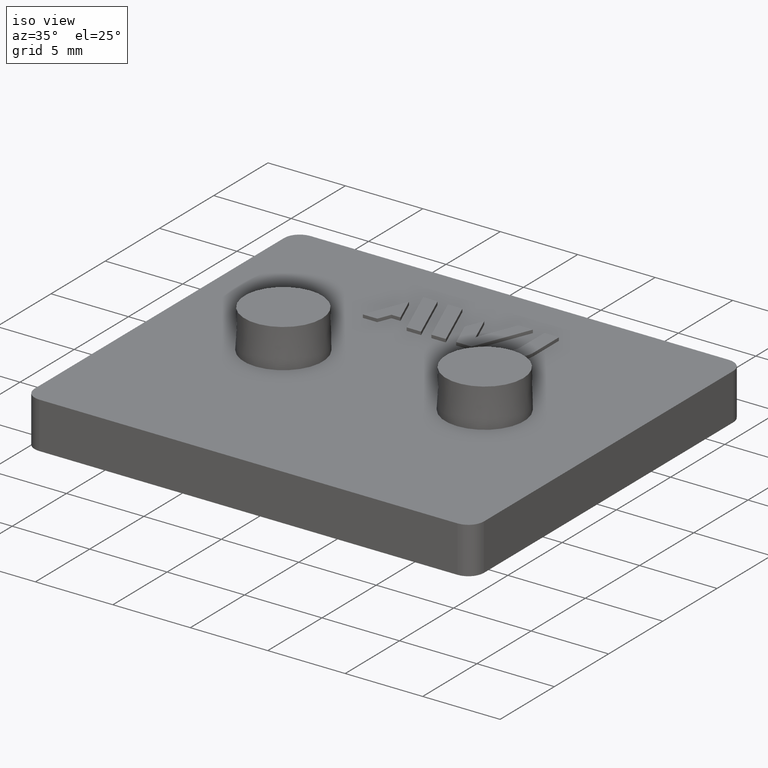
[diagram: clean part render]
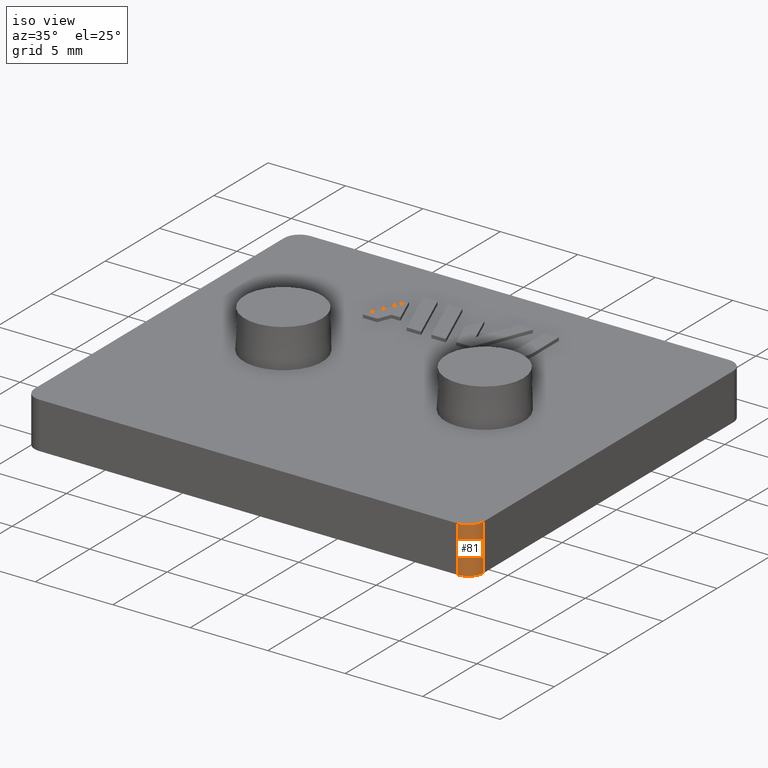
[diagram: same view with one face highlighted and labeled with its STEP entity id]
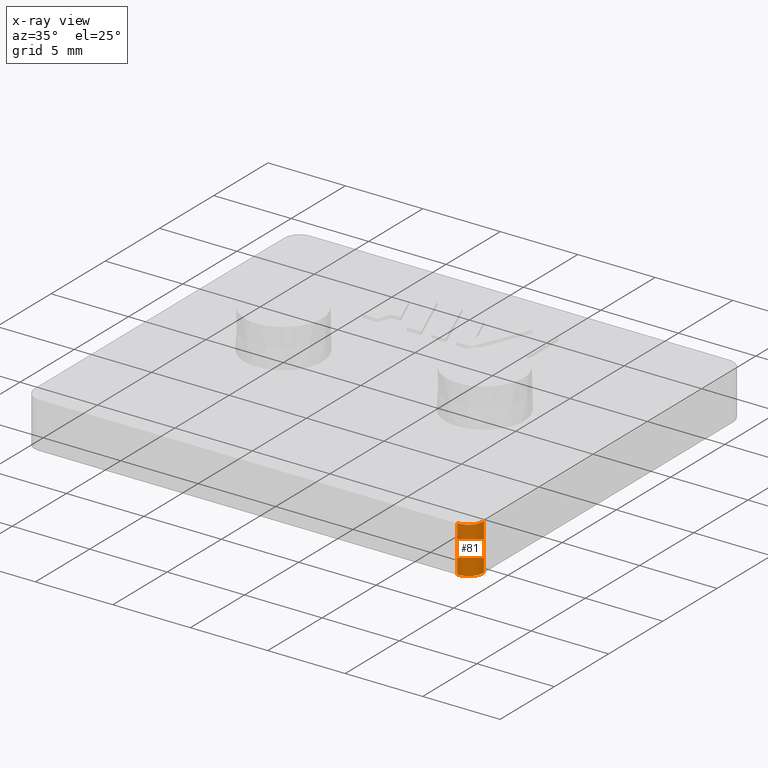
[diagram: x-ray of the same camera — body ghosted, the highlighted face saturated]
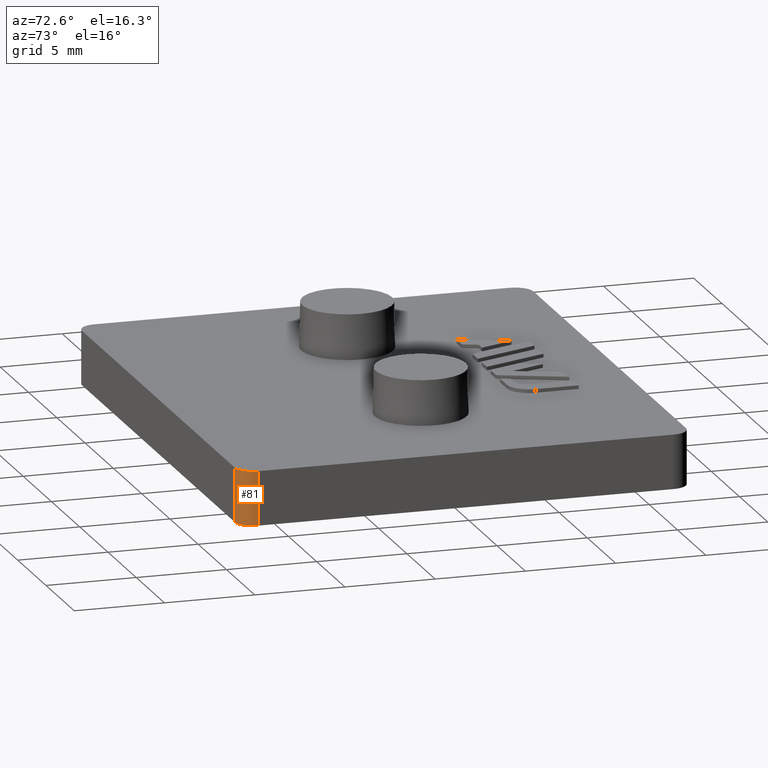
[diagram: same view with one face highlighted and labeled with its STEP entity id]
A machine part, iso view. The second image highlights one B-rep face of the part: STEP entity #81.
The next image is the same camera in x-ray: the body ghosted, the highlighted face saturated — about 0% of this face is hidden behind the body in this view.
A second angle (auxiliary view) of the same face is appended — the face is thin or edge-on in the first view.
In plain terms, the highlighted cylindrical surface (edge-blend (fillet) strip) has radius 1 mm, axis along (-0, -0, -1).
Its self-contained STEP definition (entity closure, byte-faithful):
#81 = ADVANCED_FACE( '', ( #156 ), #157, .T. );
#156 = FACE_OUTER_BOUND( '', #289, .T. );
#157 = CYLINDRICAL_SURFACE( '', #290, 0.999999999999987 );
#289 = EDGE_LOOP( '', ( #479, #480, #481, #482 ) );
#290 = AXIS2_PLACEMENT_3D( '', #483, #484, #485 );
#479 = ORIENTED_EDGE( '', *, *, #932, .F. );
#480 = ORIENTED_EDGE( '', *, *, #931, .T. );
#481 = ORIENTED_EDGE( '', *, *, #893, .T. );
#482 = ORIENTED_EDGE( '', *, *, #933, .F. );
#483 = CARTESIAN_POINT( '', ( 13.5000000000000, -11.5000000000000, -51.3812999910289 ) );
#484 = DIRECTION( '', ( -1.49519739311857E-016, -2.33178017899756E-016, -1.00000000000000 ) );
#485 = DIRECTION( '', ( 1.00000000000000, -4.62592926927148E-016, -1.49519739311857E-016 ) );
#893 = EDGE_CURVE( '', #1052, #1053, #1054, .T. );
#931 = EDGE_CURVE( '', #1122, #1052, #1124, .T. );
#932 = EDGE_CURVE( '', #1122, #1125, #1126, .T. );
#933 = EDGE_CURVE( '', #1125, #1053, #1127, .T. );
#1052 = VERTEX_POINT( '', #1311 );
#1053 = VERTEX_POINT( '', #1312 );
#1054 = CIRCLE( '', #1313, 0.999999999999987 );
#1122 = VERTEX_POINT( '', #1409 );
#1124 = LINE( '', #1412, #1413 );
#1125 = VERTEX_POINT( '', #1414 );
#1126 = CIRCLE( '', #1415, 0.999999999999987 );
#1127 = LINE( '', #1416, #1417 );
#1311 = CARTESIAN_POINT( '', ( 14.5000000000000, -11.5000000000000, 2.99999999999998 ) );
#1312 = CARTESIAN_POINT( '', ( 13.5000000000000, -12.5000000000000, 2.99999999999999 ) );
#1313 = AXIS2_PLACEMENT_3D( '', #1669, #1670, #1671 );
#1409 = CARTESIAN_POINT( '', ( 14.5000000000000, -11.5000000000000, -2.70514269621810E-014 ) );
#1412 = CARTESIAN_POINT( '', ( 14.5000000000000, -11.5000000000000, -51.3812999910289 ) );
#1413 = VECTOR( '', #1725, 1000.00000000000 );
#1414 = CARTESIAN_POINT( '', ( 13.5000000000000, -12.5000000000000, -4.08679844523044E-014 ) );
#1415 = AXIS2_PLACEMENT_3D( '', #1726, #1727, #1728 );
#1416 = CARTESIAN_POINT( '', ( 13.5000000000000, -12.5000000000000, -51.3812999910289 ) );
#1417 = VECTOR( '', #1729, 1000.00000000000 );
#1669 = CARTESIAN_POINT( '', ( 13.5000000000000, -11.5000000000000, 2.99999999999999 ) );
#1670 = DIRECTION( '', ( 0.000000000000000, -6.12303176911189E-017, -1.00000000000000 ) );
#1671 = DIRECTION( '', ( 0.000000000000000, 1.00000000000000, -6.12303176911189E-017 ) );
#1725 = DIRECTION( '', ( 1.49519739311857E-016, 2.33178017899756E-016, 1.00000000000000 ) );
#1726 = CARTESIAN_POINT( '', ( 13.5000000000000, -11.5000000000000, -1.31736391543666E-014 ) );
#1727 = DIRECTION( '', ( 0.000000000000000, -6.12303176911189E-017, -1.00000000000000 ) );
#1728 = DIRECTION( '', ( 0.000000000000000, 1.00000000000000, -6.12303176911189E-017 ) );
#1729 = DIRECTION( '', ( 1.49519739311857E-016, 2.33178017899756E-016, 1.00000000000000 ) );